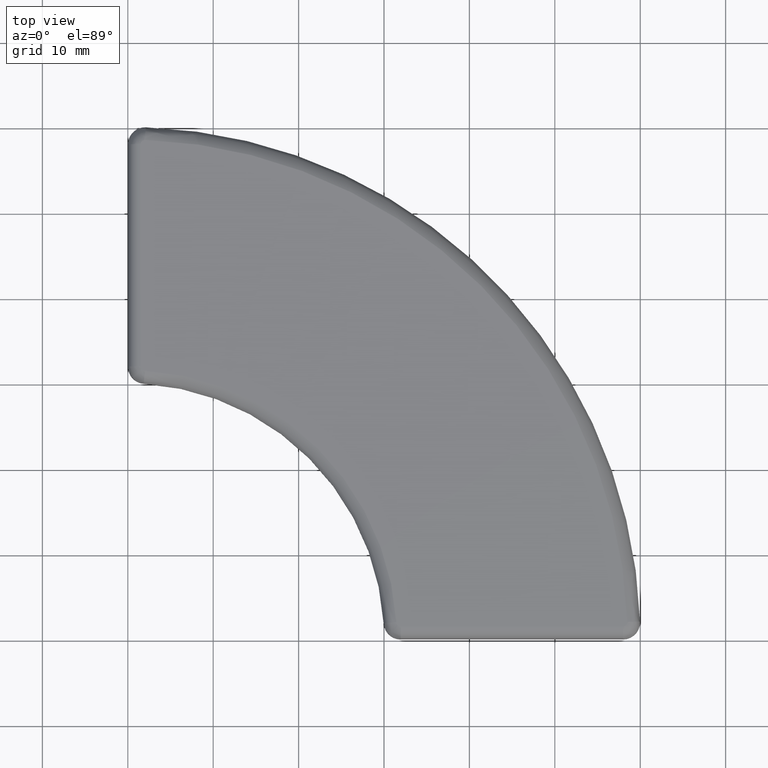
[diagram: clean part render]
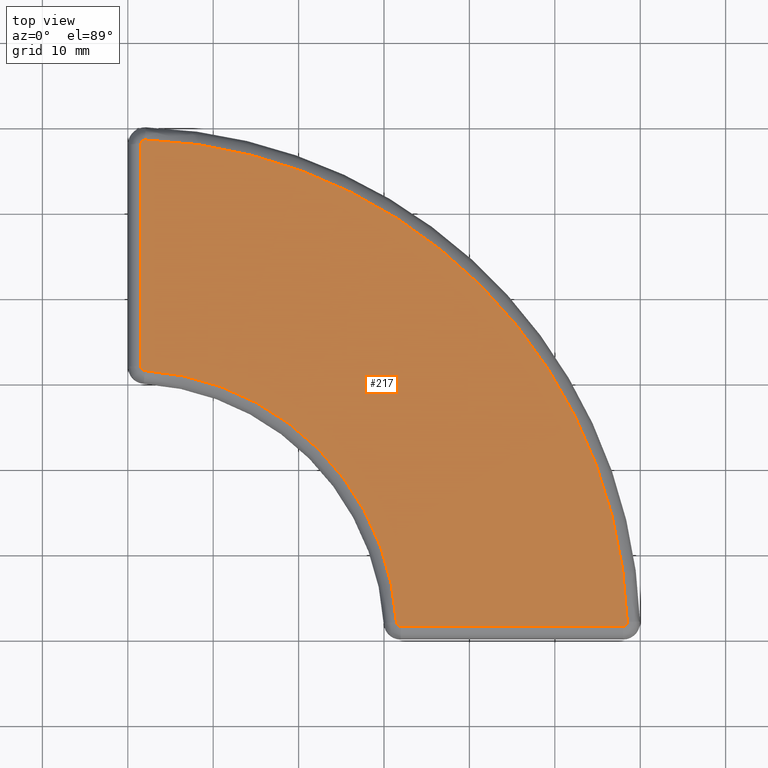
[diagram: same view with one face highlighted and labeled with its STEP entity id]
A machine part, top view. The second image highlights one B-rep face of the part: STEP entity #217.
In plain terms, the highlighted planar face has unit normal (0, 0, 1).
Its self-contained STEP definition (entity closure, byte-faithful):
#140=CARTESIAN_POINT('',(-35.980106959879357,-35.976389881100047,3.0));
#141=DIRECTION('',(0.0,0.0,1.0));
#142=DIRECTION('',(1.0,0.0,0.0));
#143=AXIS2_PLACEMENT_3D('',#140,#141,#142);
#144=PLANE('',#143);
#145=CARTESIAN_POINT('',(1.954065934955317,-28.480268532271502,3.0));
#146=VERTEX_POINT('',#145);
#147=CARTESIAN_POINT('',(27.983366097920932,-28.480268532271502,3.0));
#148=VERTEX_POINT('',#147);
#149=CARTESIAN_POINT('',(1.954065934955317,-28.480268532271502,3.0));
#150=DIRECTION('',(1.0,0.0,0.0));
#151=VECTOR('',#150,26.029300162965615);
#152=LINE('',#149,#151);
#153=EDGE_CURVE('',#146,#148,#152,.T.);
#154=ORIENTED_EDGE('',*,*,#153,.T.);
#155=CARTESIAN_POINT('',(28.483067249680406,-27.962983887922576,3.0));
#156=VERTEX_POINT('',#155);
#157=CARTESIAN_POINT('',(27.983366097920932,-27.980268532271502,3.0));
#158=DIRECTION('',(0.0,0.0,1.0));
#159=DIRECTION('',(0.0,-1.0,0.0));
#160=AXIS2_PLACEMENT_3D('',#157,#158,#159);
#161=CIRCLE('',#160,0.500000000000000);
#162=EDGE_CURVE('',#148,#156,#161,.T.);
#163=ORIENTED_EDGE('',*,*,#162,.T.);
#164=CARTESIAN_POINT('',(-27.965252812076695,28.479940712125739,3.0));
#165=VERTEX_POINT('',#164);
#166=CARTESIAN_POINT('',(-29.981967851583388,-29.985287427758109,3.0));
#167=DIRECTION('',(0.0,0.0,1.0));
#168=DIRECTION('',(0.999999996501695,0.000083645741258,0.0));
#169=AXIS2_PLACEMENT_3D('',#166,#167,#168);
#170=CIRCLE('',#169,58.500000350420841);
#171=EDGE_CURVE('',#156,#165,#170,.T.);
#172=ORIENTED_EDGE('',*,*,#171,.T.);
#173=CARTESIAN_POINT('',(-28.483372146986138,27.980268179163566,3.0));
#174=VERTEX_POINT('',#173);
#175=CARTESIAN_POINT('',(-27.983371229731816,27.980268179163566,3.0));
#176=DIRECTION('',(0.0,0.0,1.0));
#177=DIRECTION('',(0.035185123045367,0.999380811861166,0.0));
#178=AXIS2_PLACEMENT_3D('',#175,#176,#177);
#179=CIRCLE('',#178,0.500000917254318);
#180=EDGE_CURVE('',#165,#174,#179,.T.);
#181=ORIENTED_EDGE('',*,*,#180,.T.);
#182=CARTESIAN_POINT('',(-28.483366232540707,1.957063560705034,3.0));
#183=VERTEX_POINT('',#182);
#184=CARTESIAN_POINT('',(-28.483366232540707,27.980268179163566,3.0));
#185=DIRECTION('',(0.0,-1.0,0.0));
#186=VECTOR('',#185,26.023204618458529);
#187=LINE('',#184,#186);
#188=EDGE_CURVE('',#174,#183,#187,.T.);
#189=ORIENTED_EDGE('',*,*,#188,.T.);
#190=CARTESIAN_POINT('',(-28.014616232424235,1.458041078739274,3.0));
#191=VERTEX_POINT('',#190);
#192=CARTESIAN_POINT('',(-27.983366232540707,1.957063560705031,3.0));
#193=DIRECTION('',(0.0,0.0,1.0));
#194=DIRECTION('',(-1.0,1.776357E-015,0.0));
#195=AXIS2_PLACEMENT_3D('',#192,#193,#194);
#196=CIRCLE('',#195,0.500000000000000);
#197=EDGE_CURVE('',#183,#191,#196,.T.);
#198=ORIENTED_EDGE('',*,*,#197,.T.);
#199=CARTESIAN_POINT('',(1.455043557454665,-28.011520200284515,3.0));
#200=VERTEX_POINT('',#199);
#201=CARTESIAN_POINT('',(-29.983366225086488,-29.980375285104387,3.0));
#202=DIRECTION('',(0.0,0.0,-1.0));
#203=DIRECTION('',(0.998044755001306,0.062503336026028,0.0));
#204=AXIS2_PLACEMENT_3D('',#201,#202,#203);
#205=CIRCLE('',#204,31.500000000000007);
#206=EDGE_CURVE('',#191,#200,#205,.T.);
#207=ORIENTED_EDGE('',*,*,#206,.T.);
#208=CARTESIAN_POINT('',(1.954065934955317,-27.980268532271502,3.0));
#209=DIRECTION('',(0.0,0.0,1.0));
#210=DIRECTION('',(-0.998044755001306,-0.062503336026028,0.0));
#211=AXIS2_PLACEMENT_3D('',#208,#209,#210);
#212=CIRCLE('',#211,0.500000000000000);
#213=EDGE_CURVE('',#200,#146,#212,.T.);
#214=ORIENTED_EDGE('',*,*,#213,.T.);
#215=EDGE_LOOP('',(#154,#163,#172,#181,#189,#198,#207,#214));
#216=FACE_OUTER_BOUND('',#215,.T.);
#217=ADVANCED_FACE('',(#216),#144,.T.);